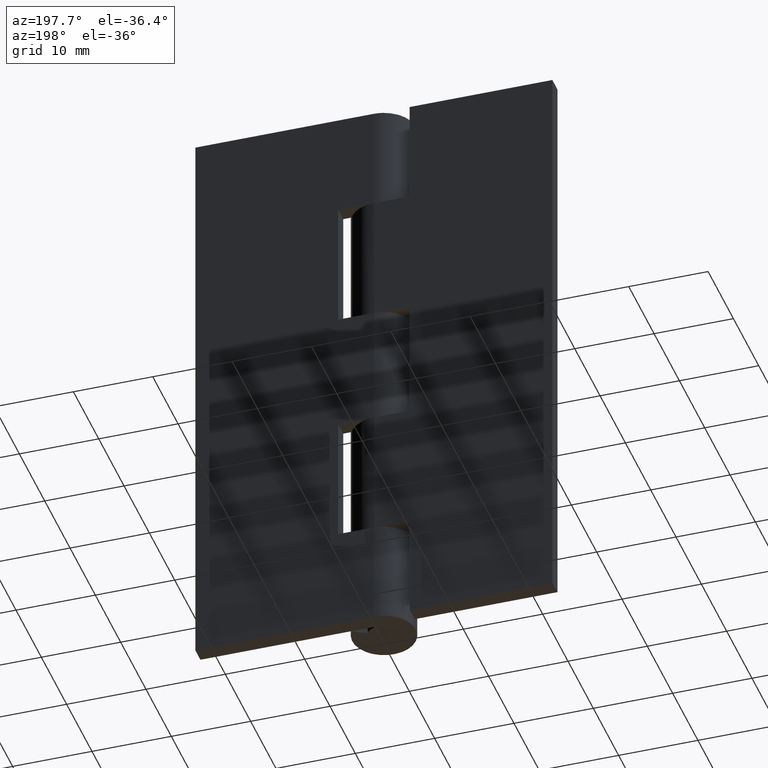
[diagram: clean part render]
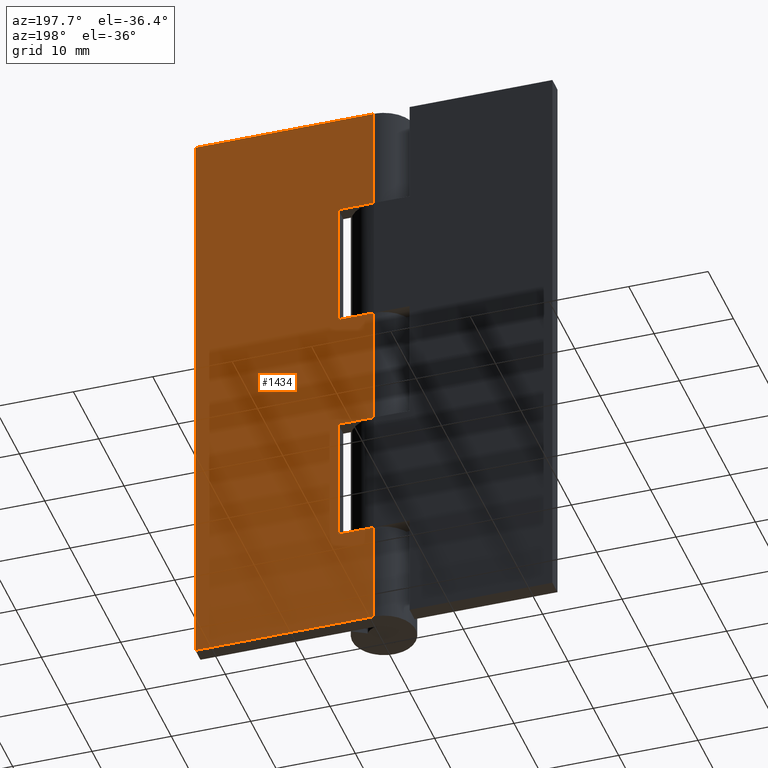
[diagram: same view with one face highlighted and labeled with its STEP entity id]
A machine part, auxiliary view. The second image highlights one B-rep face of the part: STEP entity #1434.
In plain terms, the highlighted face is a freeform B-spline surface patch.
Its self-contained STEP definition (entity closure, byte-faithful):
#768=CARTESIAN_POINT('',(-7.347614E-016,4.0,29.699997000000199));
#769=VERTEX_POINT('',#768);
#789=CARTESIAN_POINT('',(4.500000000000000,4.0,29.699997000000199));
#790=VERTEX_POINT('',#789);
#791=CARTESIAN_POINT('',(4.500000000000000,4.0,29.699997000000199));
#792=CARTESIAN_POINT('',(-7.347614E-016,4.0,29.699997000000199));
#793=QUASI_UNIFORM_CURVE('',1,(#791,#792),.UNSPECIFIED.,.F.,.U.);
#794=EDGE_CURVE('',#790,#769,#793,.T.);
#852=CARTESIAN_POINT('',(4.500000000000000,4.0,13.300003000000000));
#853=VERTEX_POINT('',#852);
#854=CARTESIAN_POINT('',(4.500000000000000,4.0,13.300003000000000));
#855=CARTESIAN_POINT('',(4.500000000000000,4.0,29.699997000000199));
#856=QUASI_UNIFORM_CURVE('',1,(#854,#855),.UNSPECIFIED.,.F.,.U.);
#857=EDGE_CURVE('',#853,#790,#856,.T.);
#872=CARTESIAN_POINT('',(-7.347614E-016,4.0,13.300003000000000));
#873=VERTEX_POINT('',#872);
#929=CARTESIAN_POINT('',(-7.347614E-016,4.0,13.300003000000000));
#930=CARTESIAN_POINT('',(4.500000000000000,4.0,13.300003000000000));
#931=QUASI_UNIFORM_CURVE('',1,(#929,#930),.UNSPECIFIED.,.F.,.U.);
#932=EDGE_CURVE('',#873,#853,#931,.T.);
#951=CARTESIAN_POINT('',(4.500000000000000,4.0,45.300002999999798));
#952=VERTEX_POINT('',#951);
#958=CARTESIAN_POINT('',(-7.347638E-016,4.0,45.300002999999798));
#959=VERTEX_POINT('',#958);
#960=CARTESIAN_POINT('',(4.500000000000000,4.0,45.300002999999798));
#961=CARTESIAN_POINT('',(-7.347638E-016,4.0,45.300002999999798));
#962=QUASI_UNIFORM_CURVE('',1,(#960,#961),.UNSPECIFIED.,.F.,.U.);
#963=EDGE_CURVE('',#952,#959,#962,.T.);
#1027=CARTESIAN_POINT('',(4.500000000000000,4.0,61.699997000000003));
#1028=VERTEX_POINT('',#1027);
#1034=CARTESIAN_POINT('',(4.500000000000000,4.0,61.699997000000003));
#1035=CARTESIAN_POINT('',(4.500000000000000,4.0,45.300002999999798));
#1036=QUASI_UNIFORM_CURVE('',1,(#1034,#1035),.UNSPECIFIED.,.F.,.U.);
#1037=EDGE_CURVE('',#1028,#952,#1036,.T.);
#1083=CARTESIAN_POINT('',(0.0,4.0,61.699997000000003));
#1084=VERTEX_POINT('',#1083);
#1104=CARTESIAN_POINT('',(0.0,4.0,61.699997000000003));
#1105=CARTESIAN_POINT('',(4.500000000000000,4.0,61.699997000000003));
#1106=QUASI_UNIFORM_CURVE('',1,(#1104,#1105),.UNSPECIFIED.,.F.,.U.);
#1107=EDGE_CURVE('',#1084,#1028,#1106,.T.);
#1118=CARTESIAN_POINT('',(-7.347638E-016,4.0,0.0));
#1119=VERTEX_POINT('',#1118);
#1120=CARTESIAN_POINT('',(22.500000000000000,4.0,0.0));
#1121=VERTEX_POINT('',#1120);
#1122=CARTESIAN_POINT('',(-7.347638E-016,4.0,0.0));
#1123=CARTESIAN_POINT('',(22.500000000000000,4.0,0.0));
#1124=QUASI_UNIFORM_CURVE('',1,(#1122,#1123),.UNSPECIFIED.,.F.,.U.);
#1125=EDGE_CURVE('',#1119,#1121,#1124,.T.);
#1196=CARTESIAN_POINT('',(-7.347638E-016,4.0,75.0));
#1197=VERTEX_POINT('',#1196);
#1198=CARTESIAN_POINT('',(22.500000000000000,4.0,75.0));
#1199=VERTEX_POINT('',#1198);
#1200=CARTESIAN_POINT('',(-7.347638E-016,4.0,75.0));
#1201=CARTESIAN_POINT('',(22.500000000000000,4.0,75.0));
#1202=QUASI_UNIFORM_CURVE('',1,(#1200,#1201),.UNSPECIFIED.,.F.,.U.);
#1203=EDGE_CURVE('',#1197,#1199,#1202,.T.);
#1291=CARTESIAN_POINT('',(-7.347638E-016,4.0,75.0));
#1292=CARTESIAN_POINT('',(0.0,4.0,61.699997000000003));
#1293=QUASI_UNIFORM_CURVE('',1,(#1291,#1292),.UNSPECIFIED.,.F.,.U.);
#1294=EDGE_CURVE('',#1197,#1084,#1293,.T.);
#1397=CARTESIAN_POINT('',(22.500000000000000,4.0,75.0));
#1398=CARTESIAN_POINT('',(22.500000000000000,4.0,0.0));
#1399=QUASI_UNIFORM_CURVE('',1,(#1397,#1398),.UNSPECIFIED.,.F.,.U.);
#1400=EDGE_CURVE('',#1199,#1121,#1399,.T.);
#1407=CARTESIAN_POINT('',(-1.123874956390635,4.0,-3.746249854635448));
#1408=CARTESIAN_POINT('',(-1.123874956390635,4.0,78.746251866292212));
#1409=CARTESIAN_POINT('',(23.623875559887662,4.0,-3.746249854635448));
#1410=CARTESIAN_POINT('',(23.623875559887662,4.0,78.746251866292212));
#1411=B_SPLINE_SURFACE_WITH_KNOTS('',1,1,((#1407,#1409),(#1408,#1410)),.UNSPECIFIED.,.F.,.F.,.U.,(2,2),(2,2),(0.0,82.492501720927663),(0.0,24.747750516278298),.UNSPECIFIED.);
#1412=ORIENTED_EDGE('',*,*,#932,.T.);
#1413=ORIENTED_EDGE('',*,*,#857,.T.);
#1414=ORIENTED_EDGE('',*,*,#794,.T.);
#1415=CARTESIAN_POINT('',(-7.347638E-016,4.0,45.300002999999798));
#1416=CARTESIAN_POINT('',(-7.347614E-016,4.0,29.699997000000199));
#1417=QUASI_UNIFORM_CURVE('',1,(#1415,#1416),.UNSPECIFIED.,.F.,.U.);
#1418=EDGE_CURVE('',#959,#769,#1417,.T.);
#1419=ORIENTED_EDGE('',*,*,#1418,.F.);
#1420=ORIENTED_EDGE('',*,*,#963,.F.);
#1421=ORIENTED_EDGE('',*,*,#1037,.F.);
#1422=ORIENTED_EDGE('',*,*,#1107,.F.);
#1423=ORIENTED_EDGE('',*,*,#1294,.F.);
#1424=ORIENTED_EDGE('',*,*,#1203,.T.);
#1425=ORIENTED_EDGE('',*,*,#1400,.T.);
#1426=ORIENTED_EDGE('',*,*,#1125,.F.);
#1427=CARTESIAN_POINT('',(-7.347614E-016,4.0,13.300003000000000));
#1428=CARTESIAN_POINT('',(-7.347638E-016,4.0,0.0));
#1429=QUASI_UNIFORM_CURVE('',1,(#1427,#1428),.UNSPECIFIED.,.F.,.U.);
#1430=EDGE_CURVE('',#873,#1119,#1429,.T.);
#1431=ORIENTED_EDGE('',*,*,#1430,.F.);
#1432=EDGE_LOOP('',(#1412,#1413,#1414,#1419,#1420,#1421,#1422,#1423,#1424,#1425,#1426,#1431));
#1433=FACE_OUTER_BOUND('',#1432,.T.);
#1434=ADVANCED_FACE('',(#1433),#1411,.T.);